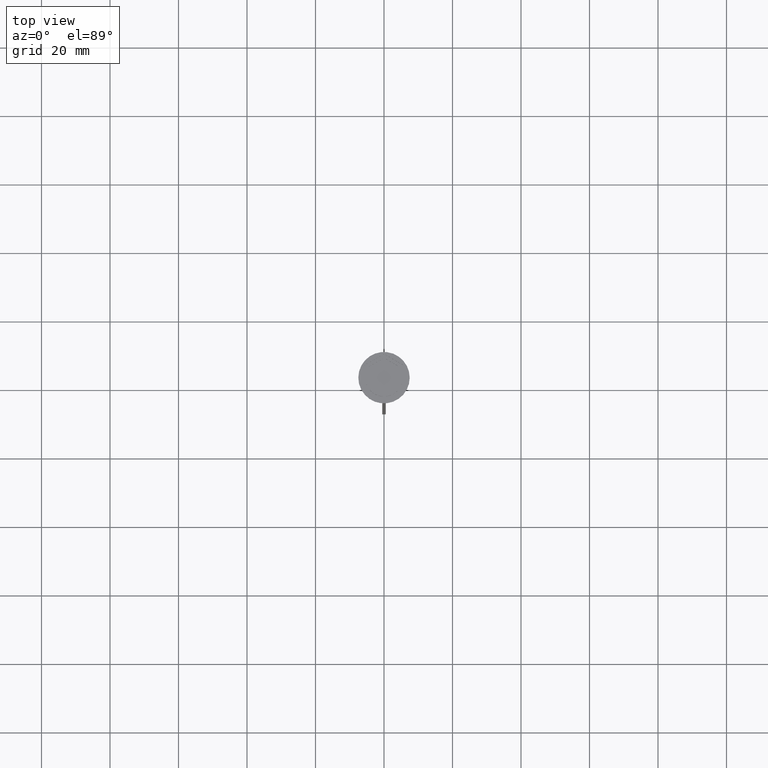
[diagram: clean part render]
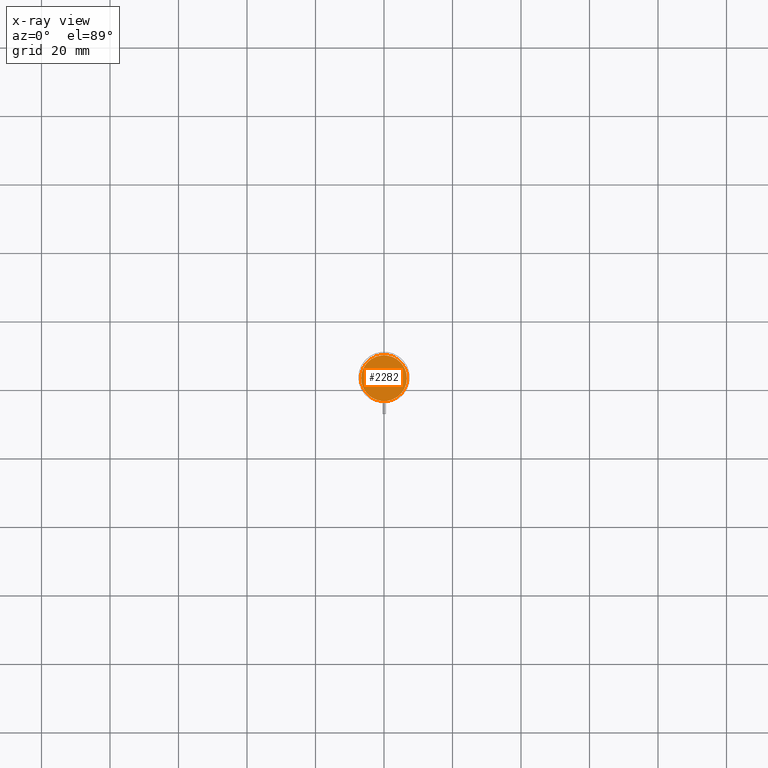
[diagram: x-ray — body ghosted, one internal face saturated and labeled with its STEP entity id]
A machine part, top view, then the same camera in x-ray: the body is ghosted and one INTERNAL B-rep face — a face not visible from any outside direction — is saturated and labeled: STEP entity #2282.
In plain terms, the highlighted planar face has unit normal (0, 0, -1).
Its self-contained STEP definition (entity closure, byte-faithful):
#241 = CARTESIAN_POINT ( 'NONE',  ( 6.700000000000001066, 8.388830574159370862E-16, -10.50000000000000178 ) ) ;
#304 = CARTESIAN_POINT ( 'NONE',  ( 0.000000000000000000, 0.000000000000000000, -10.50000000000000178 ) ) ;
#442 = CARTESIAN_POINT ( 'NONE',  ( 0.000000000000000000, 0.000000000000000000, -10.50000000000000178 ) ) ;
#478 = DIRECTION ( 'NONE',  ( -0.000000000000000000, -0.000000000000000000, 1.000000000000000000 ) ) ;
#562 = VERTEX_POINT ( 'NONE', #241 ) ;
#637 = DIRECTION ( 'NONE',  ( -1.000000000000000000, 0.000000000000000000, 0.000000000000000000 ) ) ;
#730 = DIRECTION ( 'NONE',  ( -1.000000000000000000, 0.000000000000000000, -0.000000000000000000 ) ) ;
#790 = CARTESIAN_POINT ( 'NONE',  ( -6.700000000000001066, 0.000000000000000000, -10.50000000000000178 ) ) ;
#792 = AXIS2_PLACEMENT_3D ( 'NONE', #442, #865, #637 ) ;
#865 = DIRECTION ( 'NONE',  ( -0.000000000000000000, -0.000000000000000000, 1.000000000000000000 ) ) ;
#948 = AXIS2_PLACEMENT_3D ( 'NONE', #304, #478, #1626 ) ;
#1565 = ORIENTED_EDGE ( 'NONE', *, *, #1852, .T. ) ;
#1595 = VERTEX_POINT ( 'NONE', #790 ) ;
#1616 = CIRCLE ( 'NONE', #792, 6.700000000000001066 ) ;
#1626 = DIRECTION ( 'NONE',  ( -1.000000000000000000, 0.000000000000000000, 0.000000000000000000 ) ) ;
#1664 = PLANE ( 'NONE',  #1707 ) ;
#1707 = AXIS2_PLACEMENT_3D ( 'NONE', #1867, #2098, #730 ) ;
#1852 = EDGE_CURVE ( 'NONE', #1595, #562, #1616, .T. ) ;
#1867 = CARTESIAN_POINT ( 'NONE',  ( 0.000000000000000000, 0.000000000000000000, -10.50000000000000178 ) ) ;
#1907 = EDGE_CURVE ( 'NONE', #562, #1595, #2030, .T. ) ;
#2030 = CIRCLE ( 'NONE', #948, 6.700000000000001066 ) ;
#2098 = DIRECTION ( 'NONE',  ( 0.000000000000000000, 0.000000000000000000, -1.000000000000000000 ) ) ;
#2263 = EDGE_LOOP ( 'NONE', ( #1565, #2428 ) ) ;
#2282 = ADVANCED_FACE ( 'NONE', ( #2284 ), #1664, .F. ) ;
#2284 = FACE_OUTER_BOUND ( 'NONE', #2263, .T. ) ;
#2428 = ORIENTED_EDGE ( 'NONE', *, *, #1907, .T. ) ;